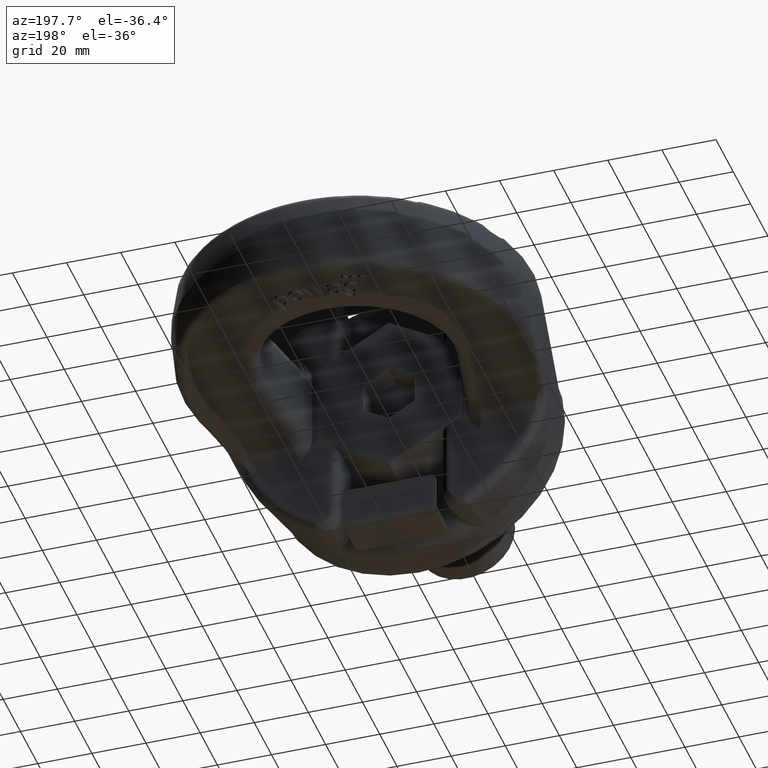
[diagram: clean part render]
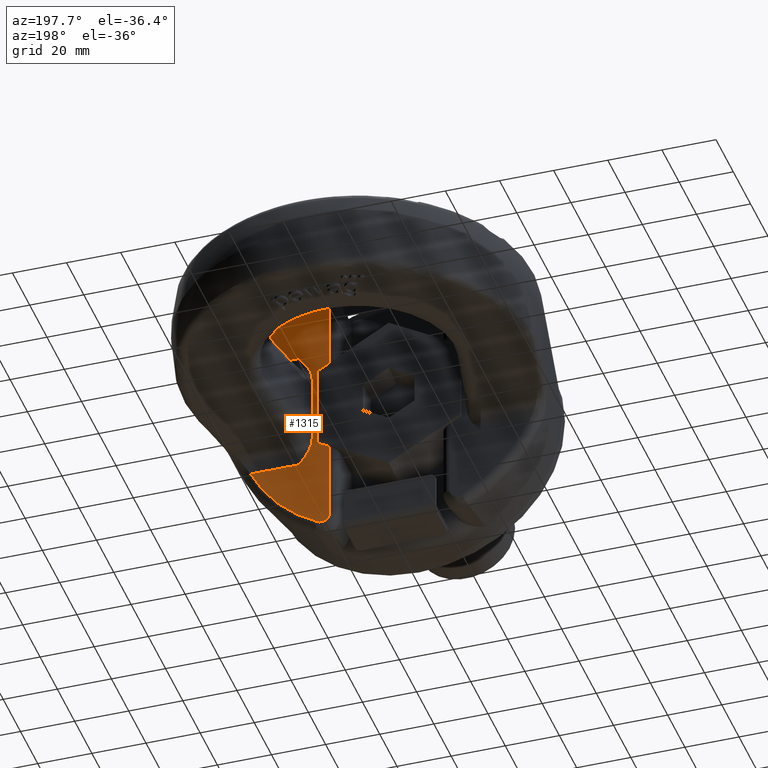
[diagram: same view with one face highlighted and labeled with its STEP entity id]
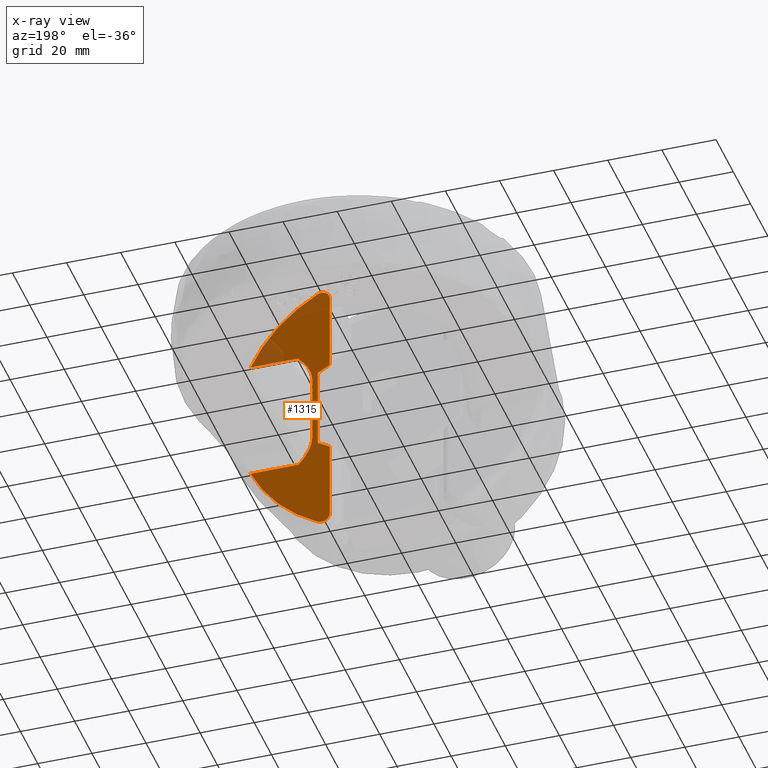
[diagram: x-ray of the same camera — body ghosted, the highlighted face saturated]
A machine part, auxiliary view. The second image highlights one B-rep face of the part: STEP entity #1315.
The next image is the same camera in x-ray: the body ghosted, the highlighted face saturated — about 14% of this face is hidden behind the body in this view.
In plain terms, the highlighted planar face has unit normal (0, 1, 0).
Its self-contained STEP definition (entity closure, byte-faithful):
#1095=FACE_OUTER_BOUND('',#1827,.T.);
#1315=ADVANCED_FACE('',(#1095),#1554,.T.);
#1554=PLANE('',#5133);
#1674=CIRCLE('',#5131,56.371725048885);
#1675=CIRCLE('',#5132,56.371725048885);
#1827=EDGE_LOOP('',(#2796,#2797,#2798,#2799,#2800,#2801,#2802,#2803,#2804,
#2805,#2806,#2807,#2808,#2809));
#2141=LINE('',#6677,#2421);
#2142=LINE('',#6680,#2422);
#2143=LINE('',#6704,#2423);
#2144=LINE('',#6713,#2424);
#2145=LINE('',#6722,#2425);
#2146=LINE('',#6749,#2426);
#2147=LINE('',#6751,#2427);
#2148=LINE('',#6753,#2428);
#2421=VECTOR('',#5467,1.);
#2422=VECTOR('',#5468,1.);
#2423=VECTOR('',#5471,1.);
#2424=VECTOR('',#5472,1.);
#2425=VECTOR('',#5473,1.);
#2426=VECTOR('',#5476,1.);
#2427=VECTOR('',#5477,1.);
#2428=VECTOR('',#5478,1.);
#2796=ORIENTED_EDGE('',*,*,#4358,.T.);
#2797=ORIENTED_EDGE('',*,*,#4359,.T.);
#2798=ORIENTED_EDGE('',*,*,#4360,.T.);
#2799=ORIENTED_EDGE('',*,*,#4361,.T.);
#2800=ORIENTED_EDGE('',*,*,#4362,.T.);
#2801=ORIENTED_EDGE('',*,*,#4363,.T.);
#2802=ORIENTED_EDGE('',*,*,#4364,.F.);
#2803=ORIENTED_EDGE('',*,*,#4365,.T.);
#2804=ORIENTED_EDGE('',*,*,#4366,.T.);
#2805=ORIENTED_EDGE('',*,*,#4367,.T.);
#2806=ORIENTED_EDGE('',*,*,#4368,.T.);
#2807=ORIENTED_EDGE('',*,*,#4369,.T.);
#2808=ORIENTED_EDGE('',*,*,#4370,.T.);
#2809=ORIENTED_EDGE('',*,*,#4371,.T.);
#3968=VERTEX_POINT('',#6678);
#3969=VERTEX_POINT('',#6679);
#3970=VERTEX_POINT('',#6681);
#3971=VERTEX_POINT('',#6701);
#3972=VERTEX_POINT('',#6703);
#3973=VERTEX_POINT('',#6705);
#3974=VERTEX_POINT('',#6712);
#3975=VERTEX_POINT('',#6714);
#3976=VERTEX_POINT('',#6721);
#3977=VERTEX_POINT('',#6723);
#3978=VERTEX_POINT('',#6725);
#3979=VERTEX_POINT('',#6748);
#3980=VERTEX_POINT('',#6750);
#3981=VERTEX_POINT('',#6752);
#4358=EDGE_CURVE('',#3968,#3969,#2141,.T.);
#4359=EDGE_CURVE('',#3969,#3970,#2142,.T.);
#4360=EDGE_CURVE('',#3970,#3971,#4883,.T.);
#4361=EDGE_CURVE('',#3971,#3972,#1674,.T.);
#4362=EDGE_CURVE('',#3972,#3973,#2143,.T.);
#4363=EDGE_CURVE('',#3973,#3974,#4884,.T.);
#4364=EDGE_CURVE('',#3975,#3974,#2144,.T.);
#4365=EDGE_CURVE('',#3975,#3976,#4885,.T.);
#4366=EDGE_CURVE('',#3976,#3977,#2145,.T.);
#4367=EDGE_CURVE('',#3977,#3978,#1675,.T.);
#4368=EDGE_CURVE('',#3978,#3979,#4886,.T.);
#4369=EDGE_CURVE('',#3979,#3980,#2146,.T.);
#4370=EDGE_CURVE('',#3980,#3981,#2147,.T.);
#4371=EDGE_CURVE('',#3981,#3968,#2148,.T.);
#4883=B_SPLINE_CURVE_WITH_KNOTS('',3,(#6682,#6683,#6684,#6685,#6686,#6687,
#6688,#6689,#6690,#6691,#6692,#6693,#6694,#6695,#6696,#6697,#6698,#6699,
#6700),.UNSPECIFIED.,.F.,.F.,(4,3,3,3,3,3,4),(0.,0.16994353157467,0.340008443851212,
0.508072254092031,0.672094220047798,0.832475844633733,1.),.UNSPECIFIED.);
#4884=B_SPLINE_CURVE_WITH_KNOTS('',3,(#6706,#6707,#6708,#6709,#6710,#6711),
 .UNSPECIFIED.,.F.,.F.,(4,2,4),(0.,0.5,1.),.UNSPECIFIED.);
#4885=B_SPLINE_CURVE_WITH_KNOTS('',3,(#6715,#6716,#6717,#6718,#6719,#6720),
 .UNSPECIFIED.,.F.,.F.,(4,2,4),(0.,0.5,1.),.UNSPECIFIED.);
#4886=B_SPLINE_CURVE_WITH_KNOTS('',3,(#6726,#6727,#6728,#6729,#6730,#6731,
#6732,#6733,#6734,#6735,#6736,#6737,#6738,#6739,#6740,#6741,#6742,#6743,
#6744,#6745,#6746,#6747),.UNSPECIFIED.,.F.,.F.,(4,3,3,3,3,3,3,4),(0.,0.15961078410031,
0.319292000794046,0.478136025047528,0.638229256825483,0.801577551580935,
0.968880240442408,1.),.UNSPECIFIED.);
#5131=AXIS2_PLACEMENT_3D('',#6702,#5469,#5470);
#5132=AXIS2_PLACEMENT_3D('',#6724,#5474,#5475);
#5133=AXIS2_PLACEMENT_3D('',#6754,#5479,#5480);
#5467=DIRECTION('',(-0.86602540378444,0.,0.499999999999998));
#5468=DIRECTION('',(0.,0.,1.));
#5469=DIRECTION('',(0.,1.,0.));
#5470=DIRECTION('',(0.,0.,1.));
#5471=DIRECTION('',(-1.,0.,0.));
#5472=DIRECTION('',(0.,0.,1.));
#5473=DIRECTION('',(1.,0.,2.34291072916505E-15));
#5474=DIRECTION('',(0.,1.,0.));
#5475=DIRECTION('',(2.34291072916505E-15,0.,-1.));
#5476=DIRECTION('',(-2.34291072916505E-15,0.,1.));
#5477=DIRECTION('',(0.866025403784438,0.,0.5));
#5478=DIRECTION('',(0.,0.,1.));
#5479=DIRECTION('',(0.,1.,0.));
#5480=DIRECTION('',(0.,0.,1.));
#6677=CARTESIAN_POINT('',(-3.93672215737507,34.,32.8724318643354));
#6678=CARTESIAN_POINT('',(26.5,34.,15.2997821335251));
#6679=CARTESIAN_POINT('',(22.1,34.,17.8401233179594));
#6680=CARTESIAN_POINT('',(22.1,34.,72.6));
#6681=CARTESIAN_POINT('',(22.1,34.,46.8658746504148));
#6682=CARTESIAN_POINT('',(22.1,34.,46.8658746504148));
#6683=CARTESIAN_POINT('',(22.0999999999998,34.,47.2282704353309));
#6684=CARTESIAN_POINT('',(22.1621114470702,34.,47.5956761581142));
#6685=CARTESIAN_POINT('',(22.2817041183441,34.,47.9377701479803));
#6686=CARTESIAN_POINT('',(22.4013442529623,34.,48.2799999064071));
#6687=CARTESIAN_POINT('',(22.5819751212387,34.,48.6064573715156));
#6688=CARTESIAN_POINT('',(22.80938102531,34.,48.8888073744513));
#6689=CARTESIAN_POINT('',(23.0340814706241,34.,49.1677982460963));
#6690=CARTESIAN_POINT('',(23.3109677302004,34.,49.4115874339799));
#6691=CARTESIAN_POINT('',(23.6169515765767,34.,49.5978670150999));
#6692=CARTESIAN_POINT('',(23.9156617650579,34.,49.7797184737489));
#6693=CARTESIAN_POINT('',(24.2506355240165,34.,49.9118598579712));
#6694=CARTESIAN_POINT('',(24.5932506097313,34.,49.9819500338586));
#6695=CARTESIAN_POINT('',(24.9284182563873,34.,50.0505166565362));
#6696=CARTESIAN_POINT('',(25.2802580817178,34.,50.0616206083875));
#6697=CARTESIAN_POINT('',(25.6190702927186,34.,50.0142389791713));
#6698=CARTESIAN_POINT('',(25.9725596977193,34.,49.9648047988915));
#6699=CARTESIAN_POINT('',(26.3222744509571,34.,49.8501419377456));
#6700=CARTESIAN_POINT('',(26.6368430723217,34.,49.6814852447849));
#6701=CARTESIAN_POINT('',(26.6368430723214,34.,49.6814852447832));
#6702=CARTESIAN_POINT('',(-1.26838675226105E-13,34.,3.88529906868292E-14));
#6703=CARTESIAN_POINT('',(51.3537621308028,34.,23.25));
#6704=CARTESIAN_POINT('',(19.,34.,23.25));
#6705=CARTESIAN_POINT('',(33.6345848189923,34.,23.25));
#6706=CARTESIAN_POINT('',(33.6345848189923,34.,23.25));
#6707=CARTESIAN_POINT('',(32.2892795818119,34.,21.7453935510659));
#6708=CARTESIAN_POINT('',(31.0168645745645,34.,20.1320546959909));
#6709=CARTESIAN_POINT('',(29.1544187699231,34.,16.5748959295063));
#6710=CARTESIAN_POINT('',(28.5432310237403,34.,14.5939347919163));
#6711=CARTESIAN_POINT('',(28.5432310237403,34.,12.5544485546208));
#6712=CARTESIAN_POINT('',(28.5432310237403,34.,12.5544485546208));
#6713=CARTESIAN_POINT('',(28.5432310237403,34.,72.6));
#6714=CARTESIAN_POINT('',(28.5432310237404,34.,-12.5544485546207));
#6715=CARTESIAN_POINT('',(28.5432310237403,34.,-12.5544485546207));
#6716=CARTESIAN_POINT('',(28.5432310237404,34.,-14.5939347919163));
#6717=CARTESIAN_POINT('',(29.1544187699232,34.,-16.5748959295062));
#6718=CARTESIAN_POINT('',(31.0168645745645,34.,-20.1320546959908));
#6719=CARTESIAN_POINT('',(32.2892795818118,34.,-21.745393551066));
#6720=CARTESIAN_POINT('',(33.6345848189923,34.,-23.2499999999999));
#6721=CARTESIAN_POINT('',(33.6345848189923,34.,-23.2499999999999));
#6722=CARTESIAN_POINT('',(28.5432310237404,34.,-23.2499999999999));
#6723=CARTESIAN_POINT('',(51.3537621308031,34.,-23.2499999999999));
#6724=CARTESIAN_POINT('',(1.26838675226105E-13,34.,-3.88529906868289E-14));
#6725=CARTESIAN_POINT('',(26.6368430723216,34.,-49.6814852447832));
#6726=CARTESIAN_POINT('',(26.6368430723216,34.,-49.6814852447832));
#6727=CARTESIAN_POINT('',(26.3369634365106,34.,-49.8422664042096));
#6728=CARTESIAN_POINT('',(26.0054234580322,34.,-49.9540227036595));
#6729=CARTESIAN_POINT('',(25.6692774032053,34.,-50.0067882892706));
#6730=CARTESIAN_POINT('',(25.3330337946591,34.,-50.0595691881037));
#6731=CARTESIAN_POINT('',(24.9829512343837,34.,-50.0547192375365));
#6732=CARTESIAN_POINT('',(24.6482919632108,34.,-49.9926808640263));
#6733=CARTESIAN_POINT('',(24.3152846084626,34.,-49.9309487190207));
#6734=CARTESIAN_POINT('',(23.9884746989949,34.,-49.8109879712981));
#6735=CARTESIAN_POINT('',(23.6941859914289,34.,-49.6433606685025));
#6736=CARTESIAN_POINT('',(23.3975352717031,34.,-49.4743879599291));
#6737=CARTESIAN_POINT('',(23.1259198810187,34.,-49.2525498848334));
#6738=CARTESIAN_POINT('',(22.9001302762509,34.,-48.9964786444818));
#6739=CARTESIAN_POINT('',(22.6697760087678,34.,-48.7352305544496));
#6740=CARTESIAN_POINT('',(22.4808972847215,34.,-48.4314409081152));
#6741=CARTESIAN_POINT('',(22.3473867550984,34.,-48.1097444804495));
#6742=CARTESIAN_POINT('',(22.210689909011,34.,-47.7803705562831));
#6743=CARTESIAN_POINT('',(22.1283134725551,34.,-47.4233651600668));
#6744=CARTESIAN_POINT('',(22.1062428993402,34.,-47.0674352520104));
#6745=CARTESIAN_POINT('',(22.102082754986,34.,-47.0003450236291));
#6746=CARTESIAN_POINT('',(22.1000000000001,34.,-46.9330937365832));
#6747=CARTESIAN_POINT('',(22.1000000000001,34.,-46.8658746504149));
#6748=CARTESIAN_POINT('',(22.1000000000001,34.,-46.8658746504149));
#6749=CARTESIAN_POINT('',(22.1000000000002,34.,-72.5999999999999));
#6750=CARTESIAN_POINT('',(22.1,34.,-17.8401233179594));
#6751=CARTESIAN_POINT('',(3.22070111043026,34.,-28.7400916139639));
#6752=CARTESIAN_POINT('',(26.5,34.,-15.299782133525));
#6753=CARTESIAN_POINT('',(26.5,34.,72.6));
#6754=CARTESIAN_POINT('',(19.,34.,72.6));